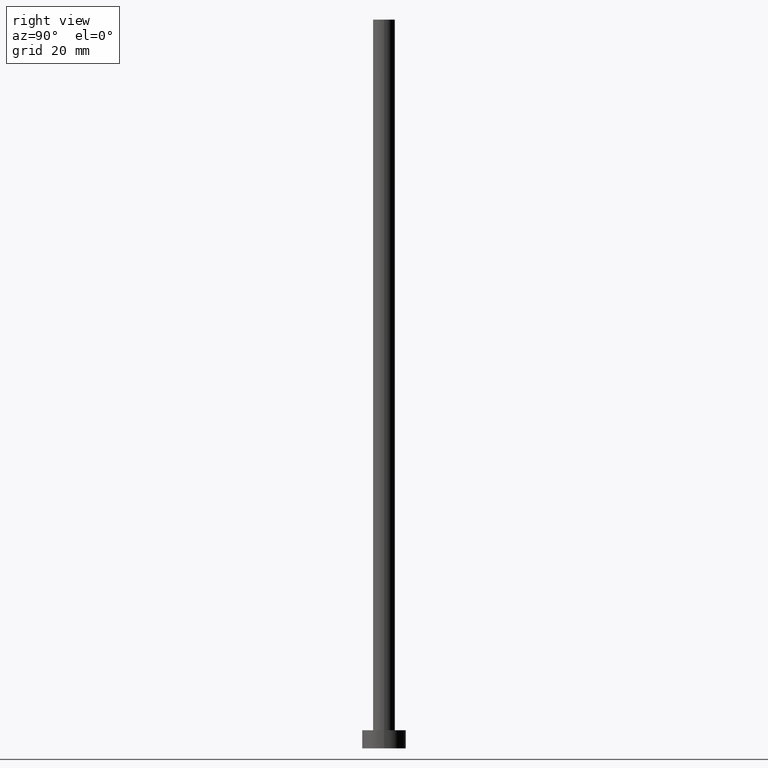
[diagram: clean part render]
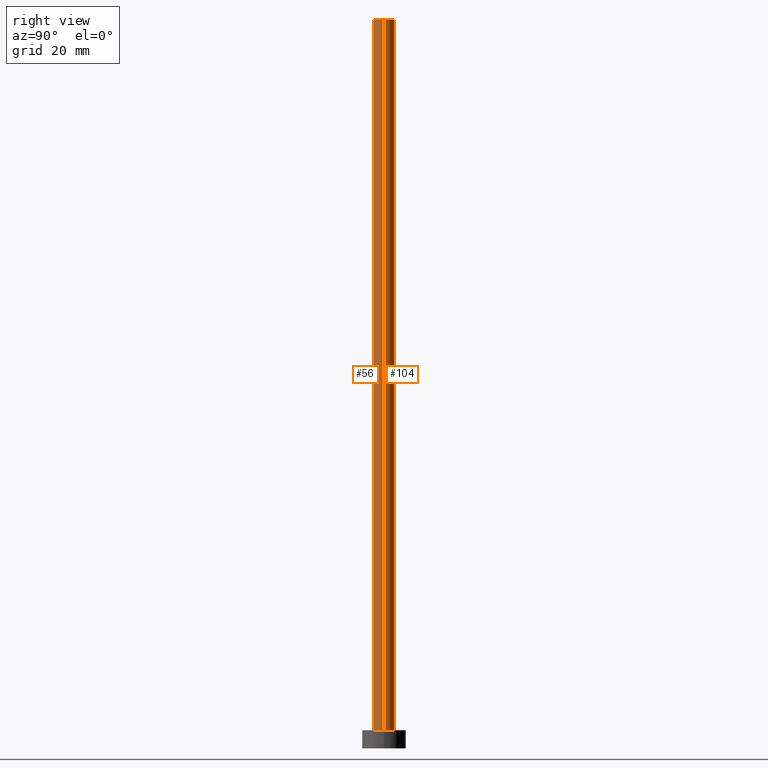
[diagram: same view with one multi-face feature highlighted, each face labeled with its STEP entity id]
A machine part, right view. The highlighted faces form ONE feature: a constant-radius fillet chain: 2 tangent blend faces with common blend radius 3 mm. The faces share edges in the B-rep.
Their STEP definitions:
[1] entity #56 (Cylinder):
#8 = DIRECTION ( 'NONE',  ( -0.000000000000000000, -0.000000000000000000, -1.000000000000000000 ) ) ;
#34 = CIRCLE ( 'NONE', #53, 3.000000000000000444 ) ;
#41 = EDGE_CURVE ( 'NONE', #203, #177, #34, .T. ) ;
#43 = VECTOR ( 'NONE', #194, 1000.000000000000000 ) ;
#52 = EDGE_CURVE ( 'NONE', #161, #200, #90, .T. ) ;
#53 = AXIS2_PLACEMENT_3D ( 'NONE', #112, #130, #245 ) ;
#55 = CYLINDRICAL_SURFACE ( 'NONE', #222, 3.000000000000000444 ) ;
#56 = ADVANCED_FACE ( 'NONE', ( #69 ), #55, .T. ) ;
#59 = CARTESIAN_POINT ( 'NONE',  ( -3.000000000000000444, 0.000000000000000000, 200.0000000000000000 ) ) ;
#64 = ORIENTED_EDGE ( 'NONE', *, *, #250, .T. ) ;
#69 = FACE_OUTER_BOUND ( 'NONE', #143, .T. ) ;
#71 = DIRECTION ( 'NONE',  ( 1.000000000000000000, 0.000000000000000000, 0.000000000000000000 ) ) ;
#78 = LINE ( 'NONE', #134, #197 ) ;
#81 = CARTESIAN_POINT ( 'NONE',  ( -3.000000000000000444, 0.000000000000000000, 5.000000000000000000 ) ) ;
#86 = AXIS2_PLACEMENT_3D ( 'NONE', #167, #206, #71 ) ;
#90 = CIRCLE ( 'NONE', #86, 3.000000000000000444 ) ;
#107 = ORIENTED_EDGE ( 'NONE', *, *, #184, .F. ) ;
#112 = CARTESIAN_POINT ( 'NONE',  ( 0.000000000000000000, 0.000000000000000000, 5.000000000000000000 ) ) ;
#117 = CARTESIAN_POINT ( 'NONE',  ( 3.000000000000000444, 3.673940397442060361E-16, 5.000000000000000000 ) ) ;
#119 = LINE ( 'NONE', #196, #43 ) ;
#130 = DIRECTION ( 'NONE',  ( 0.000000000000000000, 0.000000000000000000, 1.000000000000000000 ) ) ;
#134 = CARTESIAN_POINT ( 'NONE',  ( 3.000000000000000444, 3.673940397442060361E-16, 200.0000000000000000 ) ) ;
#143 = EDGE_LOOP ( 'NONE', ( #107, #179, #64, #255 ) ) ;
#144 = CARTESIAN_POINT ( 'NONE',  ( 0.000000000000000000, 0.000000000000000000, 200.0000000000000000 ) ) ;
#161 = VERTEX_POINT ( 'NONE', #59 ) ;
#167 = CARTESIAN_POINT ( 'NONE',  ( 0.000000000000000000, 0.000000000000000000, 200.0000000000000000 ) ) ;
#177 = VERTEX_POINT ( 'NONE', #117 ) ;
#179 = ORIENTED_EDGE ( 'NONE', *, *, #52, .F. ) ;
#184 = EDGE_CURVE ( 'NONE', #200, #177, #78, .T. ) ;
#185 = DIRECTION ( 'NONE',  ( -1.000000000000000000, 0.000000000000000000, 0.000000000000000000 ) ) ;
#194 = DIRECTION ( 'NONE',  ( -0.000000000000000000, -0.000000000000000000, -1.000000000000000000 ) ) ;
#196 = CARTESIAN_POINT ( 'NONE',  ( -3.000000000000000444, 0.000000000000000000, 200.0000000000000000 ) ) ;
#197 = VECTOR ( 'NONE', #213, 1000.000000000000000 ) ;
#200 = VERTEX_POINT ( 'NONE', #214 ) ;
#203 = VERTEX_POINT ( 'NONE', #81 ) ;
#206 = DIRECTION ( 'NONE',  ( 0.000000000000000000, 0.000000000000000000, 1.000000000000000000 ) ) ;
#213 = DIRECTION ( 'NONE',  ( -0.000000000000000000, -0.000000000000000000, -1.000000000000000000 ) ) ;
#214 = CARTESIAN_POINT ( 'NONE',  ( 3.000000000000000444, 3.673940397442060361E-16, 200.0000000000000000 ) ) ;
#222 = AXIS2_PLACEMENT_3D ( 'NONE', #144, #8, #185 ) ;
#245 = DIRECTION ( 'NONE',  ( 1.000000000000000000, 0.000000000000000000, 0.000000000000000000 ) ) ;
#250 = EDGE_CURVE ( 'NONE', #161, #203, #119, .T. ) ;
#255 = ORIENTED_EDGE ( 'NONE', *, *, #41, .T. ) ;
[2] entity #104 (Cylinder):
#2 = DIRECTION ( 'NONE',  ( 0.000000000000000000, 0.000000000000000000, 1.000000000000000000 ) ) ;
#3 = CIRCLE ( 'NONE', #38, 3.000000000000000444 ) ;
#18 = CIRCLE ( 'NONE', #182, 3.000000000000000444 ) ;
#28 = FACE_OUTER_BOUND ( 'NONE', #45, .T. ) ;
#37 = DIRECTION ( 'NONE',  ( 1.000000000000000000, 0.000000000000000000, 0.000000000000000000 ) ) ;
#38 = AXIS2_PLACEMENT_3D ( 'NONE', #187, #131, #205 ) ;
#43 = VECTOR ( 'NONE', #194, 1000.000000000000000 ) ;
#45 = EDGE_LOOP ( 'NONE', ( #139, #220, #105, #87 ) ) ;
#59 = CARTESIAN_POINT ( 'NONE',  ( -3.000000000000000444, 0.000000000000000000, 200.0000000000000000 ) ) ;
#78 = LINE ( 'NONE', #134, #197 ) ;
#81 = CARTESIAN_POINT ( 'NONE',  ( -3.000000000000000444, 0.000000000000000000, 5.000000000000000000 ) ) ;
#87 = ORIENTED_EDGE ( 'NONE', *, *, #250, .F. ) ;
#91 = EDGE_CURVE ( 'NONE', #177, #203, #3, .T. ) ;
#104 = ADVANCED_FACE ( 'NONE', ( #28 ), #208, .T. ) ;
#105 = ORIENTED_EDGE ( 'NONE', *, *, #91, .T. ) ;
#117 = CARTESIAN_POINT ( 'NONE',  ( 3.000000000000000444, 3.673940397442060361E-16, 5.000000000000000000 ) ) ;
#119 = LINE ( 'NONE', #196, #43 ) ;
#124 = CARTESIAN_POINT ( 'NONE',  ( 0.000000000000000000, 0.000000000000000000, 200.0000000000000000 ) ) ;
#131 = DIRECTION ( 'NONE',  ( 0.000000000000000000, 0.000000000000000000, 1.000000000000000000 ) ) ;
#134 = CARTESIAN_POINT ( 'NONE',  ( 3.000000000000000444, 3.673940397442060361E-16, 200.0000000000000000 ) ) ;
#139 = ORIENTED_EDGE ( 'NONE', *, *, #247, .F. ) ;
#161 = VERTEX_POINT ( 'NONE', #59 ) ;
#176 = DIRECTION ( 'NONE',  ( -0.000000000000000000, -0.000000000000000000, -1.000000000000000000 ) ) ;
#177 = VERTEX_POINT ( 'NONE', #117 ) ;
#182 = AXIS2_PLACEMENT_3D ( 'NONE', #124, #2, #37 ) ;
#184 = EDGE_CURVE ( 'NONE', #200, #177, #78, .T. ) ;
#187 = CARTESIAN_POINT ( 'NONE',  ( 0.000000000000000000, 0.000000000000000000, 5.000000000000000000 ) ) ;
#194 = DIRECTION ( 'NONE',  ( -0.000000000000000000, -0.000000000000000000, -1.000000000000000000 ) ) ;
#196 = CARTESIAN_POINT ( 'NONE',  ( -3.000000000000000444, 0.000000000000000000, 200.0000000000000000 ) ) ;
#197 = VECTOR ( 'NONE', #213, 1000.000000000000000 ) ;
#200 = VERTEX_POINT ( 'NONE', #214 ) ;
#203 = VERTEX_POINT ( 'NONE', #81 ) ;
#205 = DIRECTION ( 'NONE',  ( 1.000000000000000000, 0.000000000000000000, 0.000000000000000000 ) ) ;
#208 = CYLINDRICAL_SURFACE ( 'NONE', #209, 3.000000000000000444 ) ;
#209 = AXIS2_PLACEMENT_3D ( 'NONE', #231, #176, #228 ) ;
#213 = DIRECTION ( 'NONE',  ( -0.000000000000000000, -0.000000000000000000, -1.000000000000000000 ) ) ;
#214 = CARTESIAN_POINT ( 'NONE',  ( 3.000000000000000444, 3.673940397442060361E-16, 200.0000000000000000 ) ) ;
#220 = ORIENTED_EDGE ( 'NONE', *, *, #184, .T. ) ;
#228 = DIRECTION ( 'NONE',  ( -1.000000000000000000, 0.000000000000000000, 0.000000000000000000 ) ) ;
#231 = CARTESIAN_POINT ( 'NONE',  ( 0.000000000000000000, 0.000000000000000000, 200.0000000000000000 ) ) ;
#247 = EDGE_CURVE ( 'NONE', #200, #161, #18, .T. ) ;
#250 = EDGE_CURVE ( 'NONE', #161, #203, #119, .T. ) ;